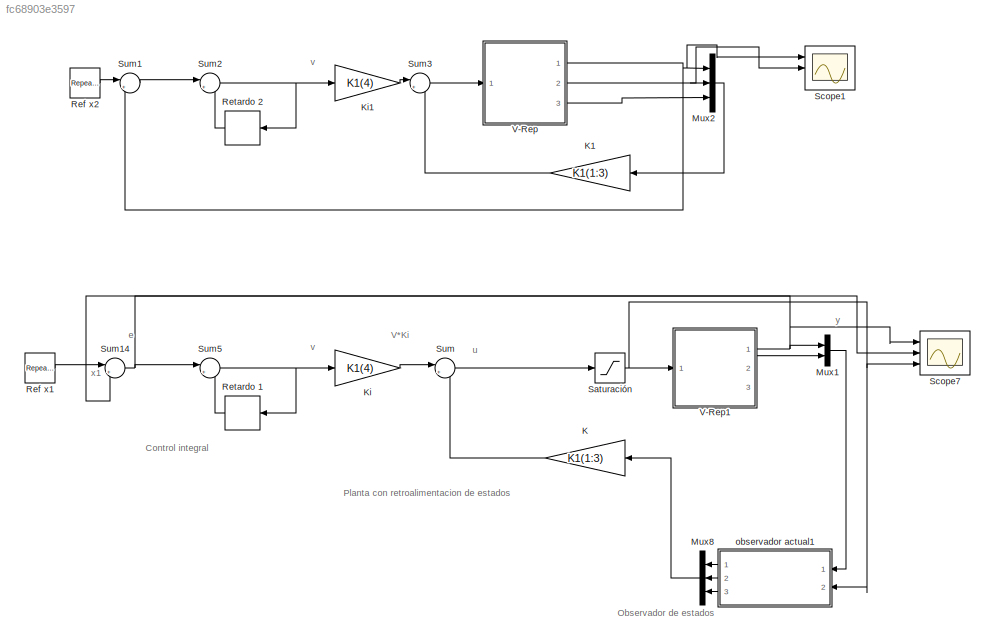
MODEL slx_fc68903e3597
KIND model
CONFIG AbsTol = auto
CONFIG EnableMultiTasking = on
CONFIG FixedStep = auto
CONFIG MaxStep = auto
CONFIG MinStep = auto
CONFIG RelTol = 1e-3
CONFIG SampleTimeConstraint = Unconstrained
CONFIG Solver = ode45
CONFIG SolverName = ode45
CONFIG StartTime = 0.0
CONFIG StopTime = 144
BLOCK [Gain] K
  Gain = K1(1:3)
  Multiplication = Matrix(K*u)
  OutDataTypeStr = Inherit: Inherit via internal rule
  ParamDataTypeStr = Inherit: Inherit via internal rule
  SaturateOnIntegerOverflow = off
BLOCK [Gain] K1
  Commented = on
  Gain = K1(1:3)
  Multiplication = Matrix(K*u)
  OutDataTypeStr = Inherit: Inherit via internal rule
  ParamDataTypeStr = Inherit: Inherit via internal rule
  SaturateOnIntegerOverflow = off
BLOCK [Gain] Ki
  Gain = K1(4)
  OutDataTypeStr = Inherit: Inherit via internal rule
  ParamDataTypeStr = Inherit: Inherit via internal rule
  SaturateOnIntegerOverflow = off
BLOCK [Gain] Ki1
  Commented = on
  Gain = K1(4)
  OutDataTypeStr = Inherit: Inherit via internal rule
  ParamDataTypeStr = Inherit: Inherit via internal rule
  SaturateOnIntegerOverflow = off
BLOCK [Mux] Mux1
  DisplayOption = bar
  Inputs = 2
  Ports = [2, 1]
BLOCK [Mux] Mux2
  Commented = on
  DisplayOption = bar
  Inputs = 3
  Ports = [3, 1]
BLOCK [Mux] Mux8
  DisplayOption = bar
  Inputs = 3
  Ports = [3, 1]
BLOCK [Reference] Ref x1  REF=simulink/Sources/Repeating
Sequence
Stair
  Ports = [0, 1]
  SourceBlock = simulink/Sources/Repeating\nSequence\nStair
  SourceProductBaseCode = SL
  SourceProductName = Simulink
  SourceType = Repeating Sequence Stair
BLOCK [Reference] Ref x2  REF=simulink/Sources/Repeating
Sequence
Stair
  Commented = on
  Ports = [0, 1]
  SourceBlock = simulink/Sources/Repeating\nSequence\nStair
  SourceProductBaseCode = SL
  SourceProductName = Simulink
  SourceType = Repeating Sequence Stair
BLOCK [Delay] Retardo 1
  DelayLength = 1
  InputPortMap = u0
  Ports = [1, 1]
  SampleTime = T
BLOCK [Delay] Retardo 2
  Commented = on
  DelayLength = 1
  InputPortMap = u0
  Ports = [1, 1]
  SampleTime = T
BLOCK [Saturate] Saturación
  InputPortMap = u0
  LowerLimit = -2.11
  Ports = [1, 1]
  UpperLimit = 2.11
BLOCK [Scope] Scope1
  Commented = on
  Floating = off
  NumInputPorts = 3
  Ports = [3]
  ScopeSpecificationString = C++SS(StrPVP('Location','[10, 60, 1364, 738]'),StrPVP('Open','off'),MxPVP('AxesTitles',53,'struct(''axes1'',''%<SignalLabel>'',''axes2'',''%<SignalLabel>'',''axes3'',''%<SignalLabel>'')'),MxPVP('ScopeGraphics',56,'struct(''FigureColor'',''[0.5 0.5 0.5]'',''AxesColor'',''[0 0 0]'',''AxesTickColor'',''[1 1 1]'',''LineColors'',''[1 1 0;1 0 1;0 1 1;1 0 0;0 1 0;0 0 1]'',''LineStyles'',''-|-|-|-|-|-'','...<+376ch>
BLOCK [Scope] Scope7
  Floating = off
  NumInputPorts = 3
  Ports = [3]
  ScopeSpecificationString = Simulink.scopes.TimeScopeBlockCfg('CurrentConfiguration', extmgr.ConfigurationSet(extmgr.Configuration('Core','General UI',true),extmgr.Configuration('Core','Source UI',true),extmgr.Configuration('Sources','WiredSimulink',true,'DataLogging',true,'DataLoggingVariableName','datos1','DataLoggingSaveFormat','StructureWithTime','DataLoggingDecimation','1','DataLoggingDecimateData',true),extmgr.Configur...<+3034ch>
BLOCK [Sum] Sum
  IconShape = round
  InputSameDT = off
  Inputs = |+-
  OutDataTypeStr = Inherit: Inherit via internal rule
  Ports = [2, 1]
  SaturateOnIntegerOverflow = off
BLOCK [Sum] Sum1
  Commented = on
  IconShape = round
  InputSameDT = off
  Inputs = |+-
  OutDataTypeStr = Inherit: Inherit via internal rule
  Ports = [2, 1]
  SaturateOnIntegerOverflow = off
BLOCK [Sum] Sum14
  IconShape = round
  InputSameDT = off
  Inputs = |+-
  OutDataTypeStr = Inherit: Inherit via internal rule
  Ports = [2, 1]
  SaturateOnIntegerOverflow = off
BLOCK [Sum] Sum2
  Commented = on
  IconShape = round
  InputSameDT = off
  Inputs = |++
  OutDataTypeStr = Inherit: Inherit via internal rule
  Ports = [2, 1]
  SaturateOnIntegerOverflow = off
BLOCK [Sum] Sum3
  Commented = on
  IconShape = round
  InputSameDT = off
  Inputs = |+-
  OutDataTypeStr = Inherit: Inherit via internal rule
  Ports = [2, 1]
  SaturateOnIntegerOverflow = off
BLOCK [Sum] Sum5
  IconShape = round
  InputSameDT = off
  Inputs = |++
  OutDataTypeStr = Inherit: Inherit via internal rule
  Ports = [2, 1]
  SaturateOnIntegerOverflow = off
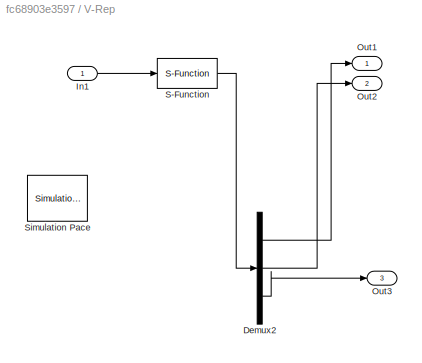
BLOCK [SubSystem] V-Rep
  AncestorBlock = V_Rep/V-Rep
  Commented = on
  Ports = [1, 3]
  RequestExecContextInheritance = off
BLOCK [Demux] V-Rep/Demux2
  DisplayOption = bar
  Outputs = 3
  Ports = [1, 3]
BLOCK [Inport] V-Rep/In1
  IconDisplay = Port number
BLOCK [Outport] V-Rep/Out1
  IconDisplay = Port number
BLOCK [Outport] V-Rep/Out2
  IconDisplay = Port number
  Port = 2
BLOCK [Outport] V-Rep/Out3
  IconDisplay = Port number
  Port = 3
BLOCK [S-Function] V-Rep/S-Function
  EnableBusSupport = off
  FunctionName = V
  Parameters = Parameter3,Parameter2,Parameter7
  Ports = [1, 1]
  SFcnIsStateOwnerBlock = off
  SFunctionDeploymentMode = off
  SFunctionModules = V_wrapper
BLOCK [Reference] V-Rep/Simulation Pace  REF=aerolibanimutils/Simulation Pace
  AttributesFormatString = %<SleepMode>\n%<SimulationPace> sec/sec
  Ports = []
  SourceBlock = aerolibanimutils/Simulation Pace
  SourceProductBaseCode = AE
  SourceProductName = Aerospace Blockset
  SourceType = Simulation Pace
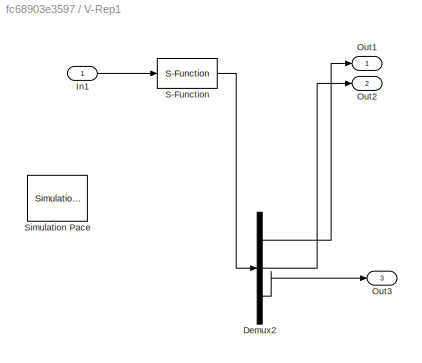
BLOCK [SubSystem] V-Rep1
  AncestorBlock = V_Rep/V-Rep
  Ports = [1, 3]
  RequestExecContextInheritance = off
BLOCK [Demux] V-Rep1/Demux2
  DisplayOption = bar
  Outputs = 3
  Ports = [1, 3]
BLOCK [Inport] V-Rep1/In1
  IconDisplay = Port number
BLOCK [Outport] V-Rep1/Out1
  IconDisplay = Port number
BLOCK [Outport] V-Rep1/Out2
  IconDisplay = Port number
  Port = 2
BLOCK [Outport] V-Rep1/Out3
  IconDisplay = Port number
  Port = 3
BLOCK [S-Function] V-Rep1/S-Function
  EnableBusSupport = off
  FunctionName = V
  Parameters = Parameter3,Parameter2,Parameter7
  Ports = [1, 1]
  SFcnIsStateOwnerBlock = off
  SFunctionDeploymentMode = off
  SFunctionModules = V_wrapper
BLOCK [Reference] V-Rep1/Simulation Pace  REF=aerolibanimutils/Simulation Pace
  AttributesFormatString = %<SleepMode>\n%<SimulationPace> sec/sec
  Ports = []
  SourceBlock = aerolibanimutils/Simulation Pace
  SourceProductBaseCode = AE
  SourceProductName = Aerospace Blockset
  SourceType = Simulation Pace
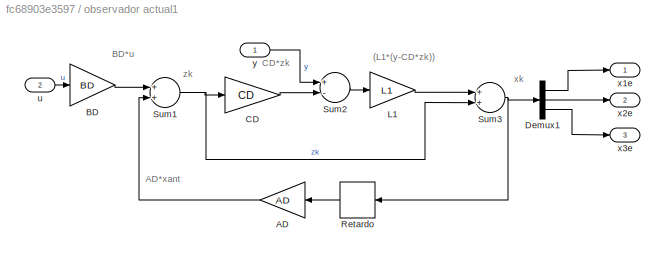
BLOCK [SubSystem] observador actual1
  Ports = [2, 3]
  RequestExecContextInheritance = off
BLOCK [Gain] observador actual1/AD
  Gain = AD
  Multiplication = Matrix(K*u)
  OutDataTypeStr = Inherit: Inherit via internal rule
  ParamDataTypeStr = Inherit: Inherit via internal rule
  SaturateOnIntegerOverflow = off
BLOCK [Gain] observador actual1/BD
  Gain = BD
  Multiplication = Matrix(K*u)
  OutDataTypeStr = Inherit: Inherit via internal rule
  ParamDataTypeStr = Inherit: Inherit via internal rule
  SaturateOnIntegerOverflow = off
BLOCK [Gain] observador actual1/CD
  Gain = CD
  Multiplication = Matrix(K*u)
  OutDataTypeStr = Inherit: Inherit via internal rule
  ParamDataTypeStr = Inherit: Inherit via internal rule
  SaturateOnIntegerOverflow = off
BLOCK [Demux] observador actual1/Demux1
  DisplayOption = bar
  Outputs = 3
  Ports = [1, 3]
BLOCK [Gain] observador actual1/L1
  Gain = L1
  Multiplication = Matrix(K*u)
  OutDataTypeStr = Inherit: Inherit via internal rule
  ParamDataTypeStr = Inherit: Inherit via internal rule
  SaturateOnIntegerOverflow = off
BLOCK [Delay] observador actual1/Retardo
  DelayLength = 1
  InitialCondition = [0 0 0]
  InputPortMap = u0
  Ports = [1, 1]
  SampleTime = T
BLOCK [Sum] observador actual1/Sum1
  InputSameDT = off
  OutDataTypeStr = Inherit: Inherit via internal rule
  Ports = [2, 1]
  SaturateOnIntegerOverflow = off
BLOCK [Sum] observador actual1/Sum2
  InputSameDT = off
  Inputs = +-
  OutDataTypeStr = Inherit: Inherit via internal rule
  Ports = [2, 1]
  SaturateOnIntegerOverflow = off
BLOCK [Sum] observador actual1/Sum3
  InputSameDT = off
  OutDataTypeStr = Inherit: Inherit via internal rule
  Ports = [2, 1]
  SaturateOnIntegerOverflow = off
BLOCK [Inport] observador actual1/u
  IconDisplay = Port number
  Port = 2
BLOCK [Outport] observador actual1/x1e
  IconDisplay = Port number
BLOCK [Outport] observador actual1/x2e
  IconDisplay = Port number
  Port = 2
BLOCK [Outport] observador actual1/x3e
  IconDisplay = Port number
  Port = 3
BLOCK [Inport] observador actual1/y
  IconDisplay = Port number
ANNOTATION (root): e
ANNOTATION (root): u
ANNOTATION (root): v
ANNOTATION (root): x1
ANNOTATION (root): y
ANNOTATION (root): Control integral
ANNOTATION (root): Observador de estados
ANNOTATION (root): Planta con retroalimentacion de estados
ANNOTATION (root): V*Ki
ANNOTATION observador actual1: (L1*(y-CD*zk))
ANNOTATION observador actual1: AD*xant
ANNOTATION observador actual1: BD*u
ANNOTATION observador actual1: CD*zk
ANNOTATION observador actual1: xk
ANNOTATION observador actual1: zk
LINE K1:1 -> Sum3:2
LINE K:1 -> Sum:2
LINE Ki1:1 -> Sum3:1
LINE Ki:1 -> Sum:1
LINE Mux1:1 -> observador actual1:1
LINE Mux2:1 -> K1:1
LINE Mux8:1 -> K:1
LINE Ref x1:1 -> Sum14:1
LINE Ref x2:1 -> Sum1:1
LINE Retardo 1:1 -> Sum5:2
LINE Retardo 2:1 -> Sum2:2
NET Saturación:1 -> Scope7:3, V-Rep1:1, observador actual1:2
NET Sum14:1 -> Scope7:2, Sum5:1
LINE Sum1:1 -> Sum2:1
NET Sum2:1 -> Ki1:1, Retardo 2:1
LINE Sum3:1 -> V-Rep:1
NET Sum5:1 -> Ki:1, Retardo 1:1
LINE Sum:1 -> Saturación:1
NET V-Rep1:1 -> Mux1:1, Scope7:1, Sum14:2
LINE V-Rep1:2 -> Mux1:2
NET V-Rep:1 -> Mux2:1, Scope1:1, Sum1:2
NET V-Rep:2 -> Mux2:2, Scope1:2
LINE V-Rep:3 -> Mux2:3
LINE observador actual1/AD:1 -> observador actual1/Sum1:2
LINE observador actual1/BD:1 -> observador actual1/Sum1:1
LINE observador actual1/CD:1 -> observador actual1/Sum2:2
LINE observador actual1/Demux1:1 -> observador actual1/x1e:1
LINE observador actual1/Demux1:2 -> observador actual1/x2e:1
LINE observador actual1/Demux1:3 -> observador actual1/x3e:1
LINE observador actual1/L1:1 -> observador actual1/Sum3:1
LINE observador actual1/Retardo:1 -> observador actual1/AD:1
NET observador actual1/Sum1:1 -> observador actual1/CD:1, observador actual1/Sum3:2
LINE observador actual1/Sum2:1 -> observador actual1/L1:1
NET observador actual1/Sum3:1 -> observador actual1/Demux1:1, observador actual1/Retardo:1
LINE observador actual1/u:1 -> observador actual1/BD:1
LINE observador actual1/y:1 -> observador actual1/Sum2:1
LINE observador actual1:1 -> Mux8:1
LINE observador actual1:2 -> Mux8:2
LINE observador actual1:3 -> Mux8:3
note: NET lines group one-source signal fan-out (src -> all destinations, sorted); 1:1 wires keep LINE
